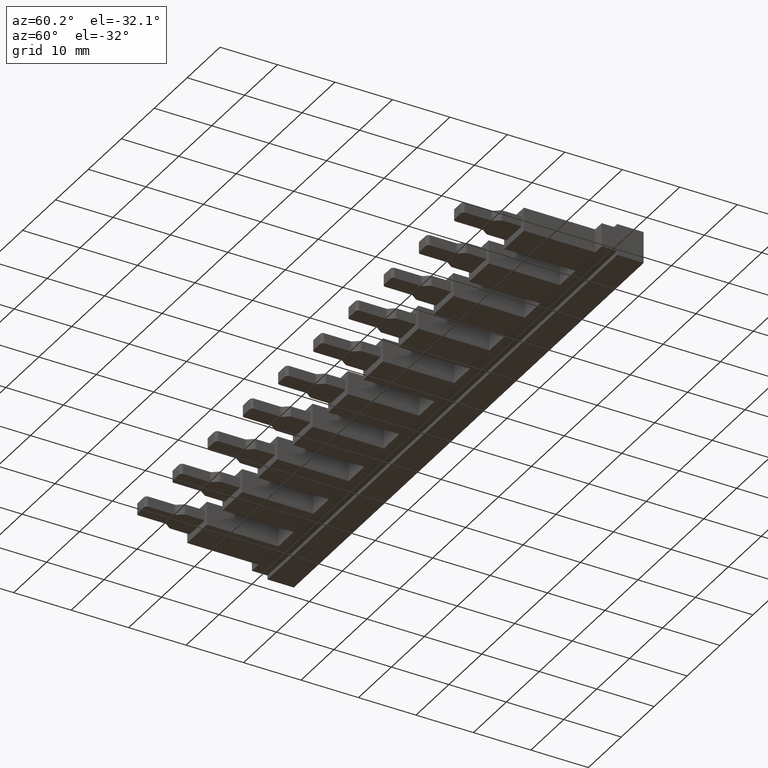
[diagram: clean part render]
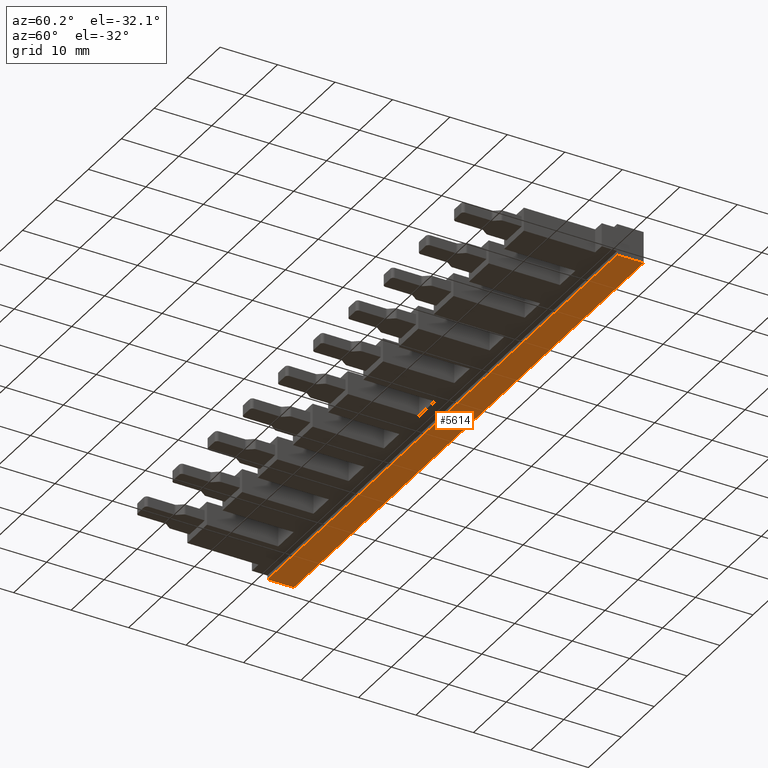
[diagram: same view with one face highlighted and labeled with its STEP entity id]
A machine part, auxiliary view. The second image highlights one B-rep face of the part: STEP entity #5614.
In plain terms, the highlighted planar face has unit normal (0, 0, -1).
Its self-contained STEP definition (entity closure, byte-faithful):
#573 = PLANE ( 'NONE',  #1124 ) ;
#603 = DIRECTION ( 'NONE',  ( 0.0000000000000000000, 0.0000000000000000000, -1.000000000000000000 ) ) ;
#615 = FACE_OUTER_BOUND ( 'NONE', #2213, .T. ) ;
#619 = CARTESIAN_POINT ( 'NONE',  ( -10.70000000000000300, 7.299999999999993600, -0.6999999999999999600 ) ) ;
#626 = DIRECTION ( 'NONE',  ( -1.000000000000000000, 0.0000000000000000000, 0.0000000000000000000 ) ) ;
#1124 = AXIS2_PLACEMENT_3D ( 'NONE', #619, #603, #626 ) ;
#1352 = VECTOR ( 'NONE', #2413, 1000.000000000000000 ) ;
#1364 = VECTOR ( 'NONE', #2442, 1000.000000000000000 ) ;
#1371 = VECTOR ( 'NONE', #2554, 1000.000000000000000 ) ;
#1419 = VECTOR ( 'NONE', #2551, 1000.000000000000000 ) ;
#2213 = EDGE_LOOP ( 'NONE', ( #6222, #6237, #6243, #6225 ) ) ;
#2352 = LINE ( 'NONE', #2412, #1352 ) ;
#2412 = CARTESIAN_POINT ( 'NONE',  ( 0.0000000000000000000, 7.299999999999999800, -0.6999999999999999600 ) ) ;
#2413 = DIRECTION ( 'NONE',  ( 2.409338161078894500E-017, 1.000000000000000000, 0.0000000000000000000 ) ) ;
#2427 = LINE ( 'NONE', #2458, #1364 ) ;
#2442 = DIRECTION ( 'NONE',  ( -1.000000000000000000, -2.775557561562890400E-016, 0.0000000000000000000 ) ) ;
#2458 = CARTESIAN_POINT ( 'NONE',  ( 31.39999999999999900, 2.700000000000005100, -0.6999999999999999600 ) ) ;
#2497 = LINE ( 'NONE', #2536, #1371 ) ;
#2531 = CARTESIAN_POINT ( 'NONE',  ( 106.3000000000000000, 7.300000000000017600, -0.6999999999999999600 ) ) ;
#2536 = CARTESIAN_POINT ( 'NONE',  ( -10.70000000000000300, 7.299999999999993600, -0.6999999999999999600 ) ) ;
#2543 = LINE ( 'NONE', #2531, #1419 ) ;
#2551 = DIRECTION ( 'NONE',  ( 3.016491377670779700E-016, -1.000000000000000000, 0.0000000000000000000 ) ) ;
#2554 = DIRECTION ( 'NONE',  ( 1.000000000000000000, 2.775557561562890400E-016, 0.0000000000000000000 ) ) ;
#4580 = CARTESIAN_POINT ( 'NONE',  ( 106.3000000000000000, 2.700000000000017500, -0.6999999999999999600 ) ) ;
#4603 = CARTESIAN_POINT ( 'NONE',  ( 0.0000000000000000000, 7.299999999999999800, -0.6999999999999999600 ) ) ;
#4605 = CARTESIAN_POINT ( 'NONE',  ( 106.3000000000000000, 7.300000000000017600, -0.6999999999999999600 ) ) ;
#4621 = CARTESIAN_POINT ( 'NONE',  ( -1.108295554096292100E-016, 2.699999999999997500, -0.6999999999999999600 ) ) ;
#5034 = EDGE_CURVE ( 'NONE', #5813, #5835, #2352, .T. ) ;
#5059 = EDGE_CURVE ( 'NONE', #5811, #5813, #2427, .T. ) ;
#5084 = EDGE_CURVE ( 'NONE', #5835, #5837, #2497, .T. ) ;
#5086 = EDGE_CURVE ( 'NONE', #5837, #5811, #2543, .T. ) ;
#5614 = ADVANCED_FACE ( 'NONE', ( #615 ), #573, .T. ) ;
#5811 = VERTEX_POINT ( 'NONE', #4580 ) ;
#5813 = VERTEX_POINT ( 'NONE', #4621 ) ;
#5835 = VERTEX_POINT ( 'NONE', #4603 ) ;
#5837 = VERTEX_POINT ( 'NONE', #4605 ) ;
#6222 = ORIENTED_EDGE ( 'NONE', *, *, #5084, .T. ) ;
#6225 = ORIENTED_EDGE ( 'NONE', *, *, #5034, .T. ) ;
#6237 = ORIENTED_EDGE ( 'NONE', *, *, #5086, .T. ) ;
#6243 = ORIENTED_EDGE ( 'NONE', *, *, #5059, .T. ) ;